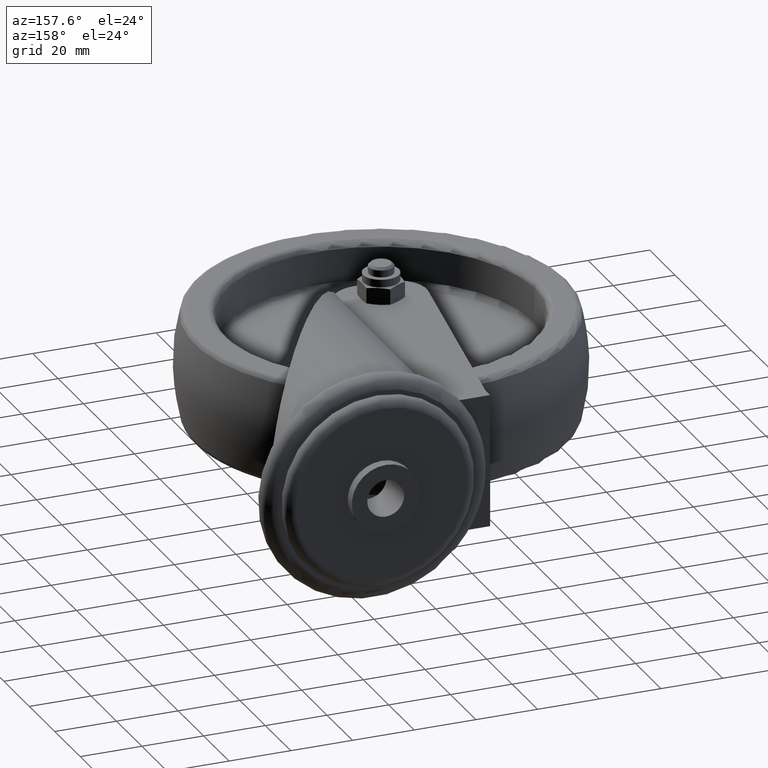
[diagram: clean part render]
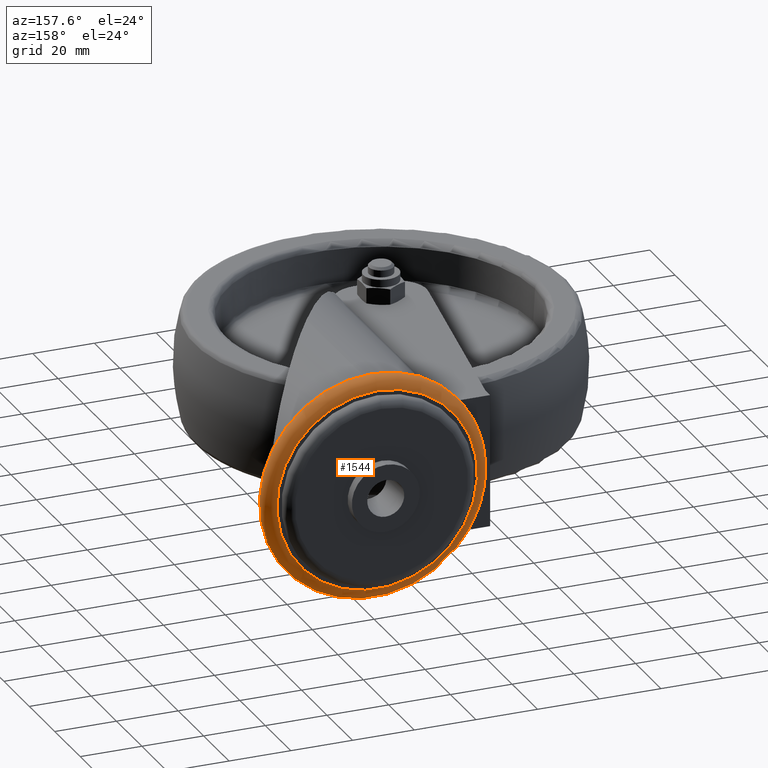
[diagram: same view with one face highlighted and labeled with its STEP entity id]
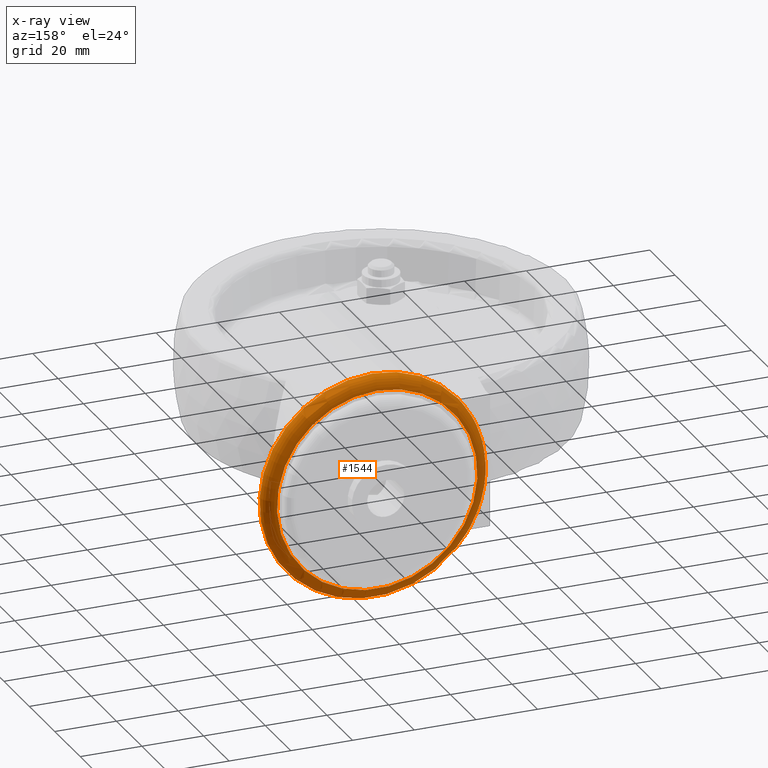
[diagram: x-ray of the same camera — body ghosted, the highlighted face saturated]
A machine part, auxiliary view. The second image highlights one B-rep face of the part: STEP entity #1544.
The next image is the same camera in x-ray: the body ghosted, the highlighted face saturated — about 0% of this face is hidden behind the body in this view.
In plain terms, the highlighted toroidal blend (fillet) surface has major radius 32.5 mm and minor (blend) radius 4 mm.
Its self-contained STEP definition (entity closure, byte-faithful):
#138=TOROIDAL_SURFACE('',#1787,32.5,4.);
#233=FACE_OUTER_BOUND('',#342,.T.);
#342=EDGE_LOOP('',(#1132,#1133,#1134,#1135));
#467=CIRCLE('',#1786,32.5);
#468=CIRCLE('',#1788,36.5);
#469=CIRCLE('',#1789,4.);
#727=VERTEX_POINT('',#2618);
#728=VERTEX_POINT('',#2621);
#883=EDGE_CURVE('',#727,#727,#467,.T.);
#884=EDGE_CURVE('',#728,#728,#468,.T.);
#885=EDGE_CURVE('',#728,#727,#469,.T.);
#1132=ORIENTED_EDGE('',*,*,#884,.F.);
#1133=ORIENTED_EDGE('',*,*,#885,.T.);
#1134=ORIENTED_EDGE('',*,*,#883,.T.);
#1135=ORIENTED_EDGE('',*,*,#885,.F.);
#1544=ADVANCED_FACE('',(#233),#138,.T.);
#1786=AXIS2_PLACEMENT_3D('',#2619,#2084,#2085);
#1787=AXIS2_PLACEMENT_3D('',#2620,#2086,#2087);
#1788=AXIS2_PLACEMENT_3D('',#2622,#2088,#2089);
#1789=AXIS2_PLACEMENT_3D('',#2623,#2090,#2091);
#2084=DIRECTION('center_axis',(0.,-1.,0.));
#2085=DIRECTION('ref_axis',(0.,0.,-1.));
#2086=DIRECTION('center_axis',(0.,-1.,0.));
#2087=DIRECTION('ref_axis',(0.,0.,-1.));
#2088=DIRECTION('center_axis',(0.,-1.,0.));
#2089=DIRECTION('ref_axis',(0.,0.,-1.));
#2090=DIRECTION('center_axis',(-1.,0.,-1.2166827667125E-16));
#2091=DIRECTION('ref_axis',(-1.2166827667125E-16,0.,1.));
#2618=CARTESIAN_POINT('',(37.,86.7,32.5));
#2619=CARTESIAN_POINT('Origin',(37.,86.7,0.));
#2620=CARTESIAN_POINT('Origin',(37.,82.7,0.));
#2621=CARTESIAN_POINT('',(37.,82.7,36.5));
#2622=CARTESIAN_POINT('Origin',(37.,82.7,0.));
#2623=CARTESIAN_POINT('Origin',(37.,82.7,32.5));